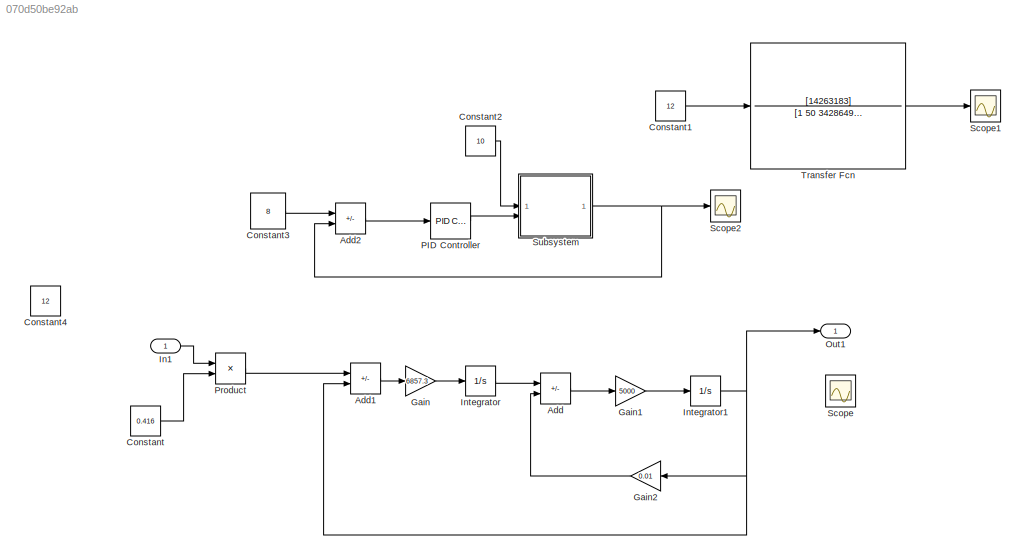
MODEL slx_070d50be92ab
KIND model
CONFIG AbsTol = auto
CONFIG EnableMultiTasking = off
CONFIG FixedStep = auto
CONFIG MaxStep = auto
CONFIG MinStep = auto
CONFIG RelTol = 1e-3
CONFIG SampleTimeConstraint = Unconstrained
CONFIG SolverName = VariableStepAuto
CONFIG StartTime = 0.0
CONFIG StopTime = 0.1
BLOCK [Sum] Add
  IconShape = rectangular
  Inputs = +-
BLOCK [Sum] Add1
  IconShape = rectangular
  Inputs = +-
BLOCK [Sum] Add2
  Commented = on
  IconShape = rectangular
  Inputs = +-
BLOCK [Constant] Constant
  Value = 0.416
BLOCK [Constant] Constant1
  Commented = on
  Value = 12
BLOCK [Constant] Constant2
  Commented = on
  Value = 10
BLOCK [Constant] Constant3
  Commented = on
  Value = 8
BLOCK [Constant] Constant4
  Commented = on
  Value = 12
BLOCK [Gain] Gain
  Gain = 6857.3
BLOCK [Gain] Gain1
  Gain = 5000
BLOCK [Gain] Gain2
  Gain = 0.01
BLOCK [Inport] In1
BLOCK [Integrator] Integrator
BLOCK [Integrator] Integrator1
BLOCK [Outport] Out1
BLOCK [Reference] PID Controller  REF=slpidlib/PID Controller
  Commented = on
  LibrarySourceBlock = simulink/Continuous/PID Controller
  SourceBlock = slpidlib/PID Controller
  SourceType = PID 1dof
BLOCK [Product] Product
BLOCK [Scope] Scope
  Commented = on
  Floating = off
  NumInputPorts = 1
  ScopeSpecificationString = Simulink.scopes.TimeScopeBlockCfg('CurrentConfiguration', extmgr.ConfigurationSet(extmgr.Configuration('Core','General UI',true),extmgr.Configuration('Core','Source UI',true),extmgr.Configuration('Sources','WiredSimulink',true),extmgr.Configuration('Visuals','Time Domain',true,'SerializedDisplays',{struct('MinYLimReal','-1.23812','MaxYLimReal','11.14306','YLabelReal','','MinYLimMag','0.00000','Max...<+1411ch>
BLOCK [Scope] Scope1
  Commented = on
  Floating = off
  NumInputPorts = 1
  ScopeSpecificationString = Simulink.scopes.TimeScopeBlockCfg('CurrentConfiguration', extmgr.ConfigurationSet(extmgr.Configuration('Core','General UI',true,'FigureColor',[1 1 1]),extmgr.Configuration('Core','Source UI',true),extmgr.Configuration('Sources','WiredSimulink',true,'DataLoggingVariableName','ScopeData1'),extmgr.Configuration('Visuals','Time Domain',true,'SerializedDisplays',{struct('MinYLimReal','4.04396','MaxYLim...<+1534ch>
BLOCK [Scope] Scope2
  Commented = on
  Floating = off
  NumInputPorts = 1
  ScopeSpecificationString = Simulink.scopes.TimeScopeBlockCfg('CurrentConfiguration', extmgr.ConfigurationSet(extmgr.Configuration('Core','General UI',true),extmgr.Configuration('Core','Source UI',true),extmgr.Configuration('Sources','WiredSimulink',true,'DataLoggingVariableName','ScopeData1'),extmgr.Configuration('Visuals','Time Domain',true,'SerializedDisplays',{struct('MinYLimReal','-1.08442','MaxYLimReal','9.7598','YLabe...<+1462ch>
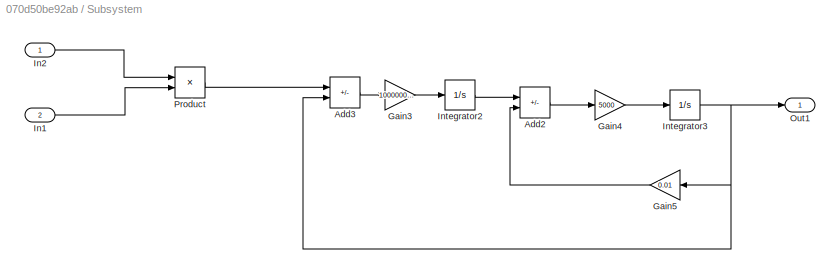
BLOCK [SubSystem] Subsystem
  Commented = on
BLOCK [Sum] Subsystem/Add2
  IconShape = rectangular
  Inputs = +-
BLOCK [Sum] Subsystem/Add3
  IconShape = rectangular
  Inputs = +-
BLOCK [Gain] Subsystem/Gain3
  Gain = 100000000/14583
BLOCK [Gain] Subsystem/Gain4
  Gain = 5000
BLOCK [Gain] Subsystem/Gain5
  Gain = 0.01
BLOCK [Inport] Subsystem/In1
  Port = 2
BLOCK [Inport] Subsystem/In2
BLOCK [Integrator] Subsystem/Integrator2
BLOCK [Integrator] Subsystem/Integrator3
BLOCK [Outport] Subsystem/Out1
BLOCK [Product] Subsystem/Product
BLOCK [TransferFcn] Transfer Fcn
  Commented = on
  Denominator = [1 50 34286497]
  Numerator = [14263183]
LINE Add1:1 -> Gain:1
LINE Add2:1 -> PID Controller:1
LINE Add:1 -> Gain1:1
LINE Constant1:1 -> Transfer Fcn:1
LINE Constant2:1 -> Subsystem:1
LINE Constant3:1 -> Add2:1
LINE Constant:1 -> Product:2
LINE Gain1:1 -> Integrator1:1
LINE Gain2:1 -> Add:2
LINE Gain:1 -> Integrator:1
LINE In1:1 -> Product:1
NET Integrator1:1 -> Add1:2, Gain2:1, Out1:1
LINE Integrator:1 -> Add:1
LINE PID Controller:1 -> Subsystem:2
LINE Product:1 -> Add1:1
LINE Subsystem/Add2:1 -> Subsystem/Gain4:1
LINE Subsystem/Add3:1 -> Subsystem/Gain3:1
LINE Subsystem/Gain3:1 -> Subsystem/Integrator2:1
LINE Subsystem/Gain4:1 -> Subsystem/Integrator3:1
LINE Subsystem/Gain5:1 -> Subsystem/Add2:2
LINE Subsystem/In1:1 -> Subsystem/Product:2
LINE Subsystem/In2:1 -> Subsystem/Product:1
LINE Subsystem/Integrator2:1 -> Subsystem/Add2:1
NET Subsystem/Integrator3:1 -> Subsystem/Add3:2, Subsystem/Gain5:1, Subsystem/Out1:1
LINE Subsystem/Product:1 -> Subsystem/Add3:1
NET Subsystem:1 -> Add2:2, Scope2:1
LINE Transfer Fcn:1 -> Scope1:1
note: NET lines group one-source signal fan-out (src -> all destinations, sorted); 1:1 wires keep LINE
